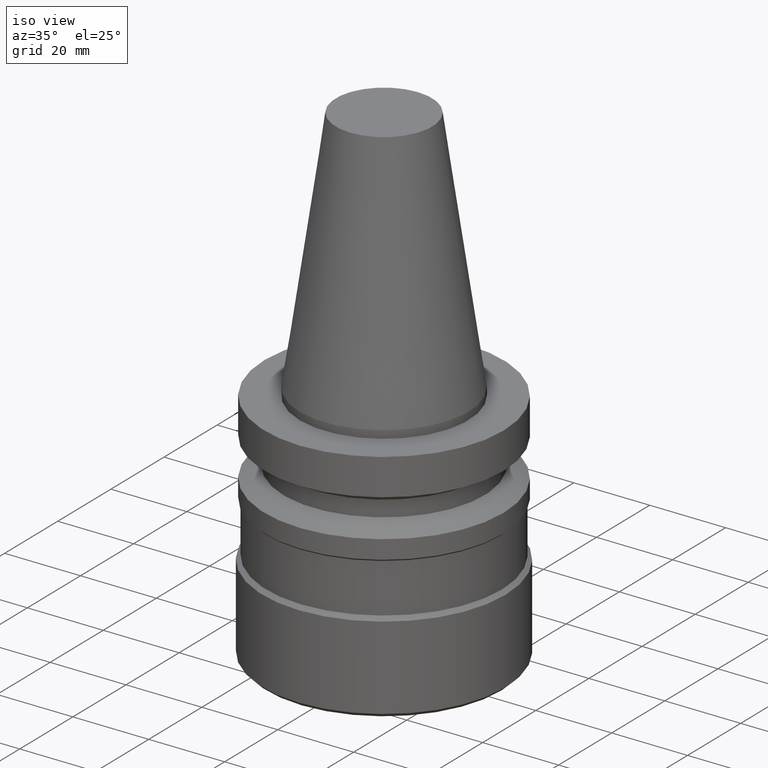
[diagram: clean part render]
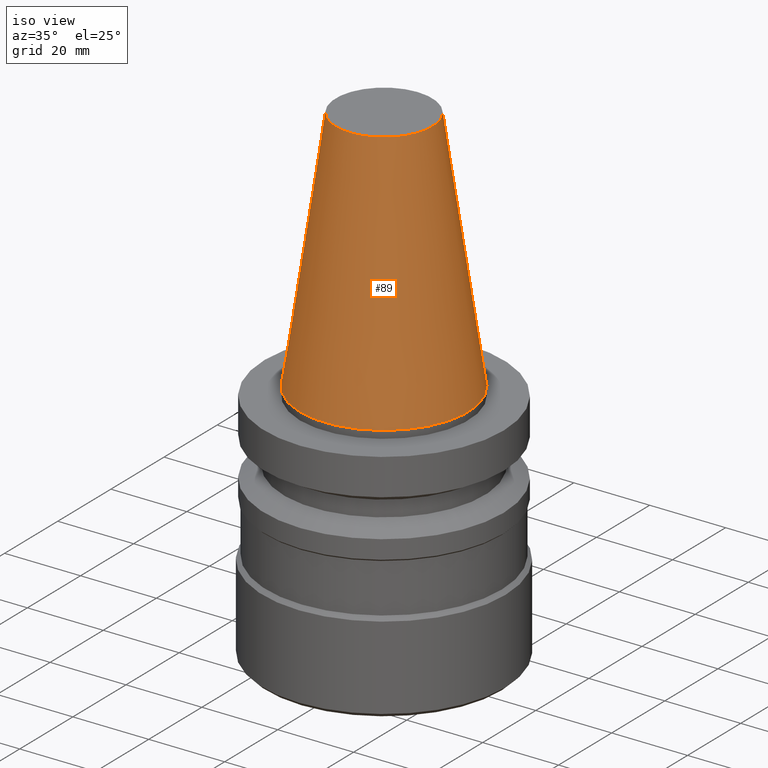
[diagram: same view with one face highlighted and labeled with its STEP entity id]
A machine part, iso view. The second image highlights one B-rep face of the part: STEP entity #89.
In plain terms, the highlighted conical surface has half-angle 8.297 deg.
Its self-contained STEP definition (entity closure, byte-faithful):
#89=ADVANCED_FACE('',(#131,#132),#133,.T.);
#131=FACE_BOUND('',#174,.T.);
#132=FACE_BOUND('',#175,.T.);
#133=CONICAL_SURFACE('',#176,17.4562504492561,0.144812484786321);
#174=EDGE_LOOP('',(#245));
#175=EDGE_LOOP('',(#246));
#176=AXIS2_PLACEMENT_3D('',#247,#248,#249);
#245=ORIENTED_EDGE('',*,*,#253,.F.);
#246=ORIENTED_EDGE('',*,*,#263,.T.);
#247=CARTESIAN_POINT('',(-2.00229751660592E-015,-4.00459503321185E-015,32.7));
#248=DIRECTION('',(6.12323399573677E-017,1.22464679914735E-016,-1.0));
#249=DIRECTION('',(-1.23259516440783E-032,1.0,1.22464679914735E-016));
#253=EDGE_CURVE('',#270,#270,#271,.T.);
#263=EDGE_CURVE('',#290,#290,#291,.T.);
#270=VERTEX_POINT('',#298);
#271=CIRCLE('',#299,12.6875008985122);
#290=VERTEX_POINT('',#318);
#291=CIRCLE('',#319,22.225);
#298=CARTESIAN_POINT('',(-4.00459503321185E-015,12.6875008985122,65.4));
#299=AXIS2_PLACEMENT_3D('',#329,#330,#331);
#318=CARTESIAN_POINT('',(-2.73944275289641E-031,22.225,2.72177751110499E-015));
#319=AXIS2_PLACEMENT_3D('',#359,#360,#361);
#329=CARTESIAN_POINT('',(-4.00459503321185E-015,-8.00919006642369E-015,65.4));
#330=DIRECTION('',(-6.12323399573677E-017,-1.22464679914735E-016,1.0));
#331=DIRECTION('',(-1.23259516440783E-032,1.0,1.22464679914735E-016));
#359=CARTESIAN_POINT('',(0.0,0.0,0.0));
#360=DIRECTION('',(-6.12323399573677E-017,-1.22464679914735E-016,1.0));
#361=DIRECTION('',(-1.23259516440783E-032,1.0,1.22464679914735E-016));